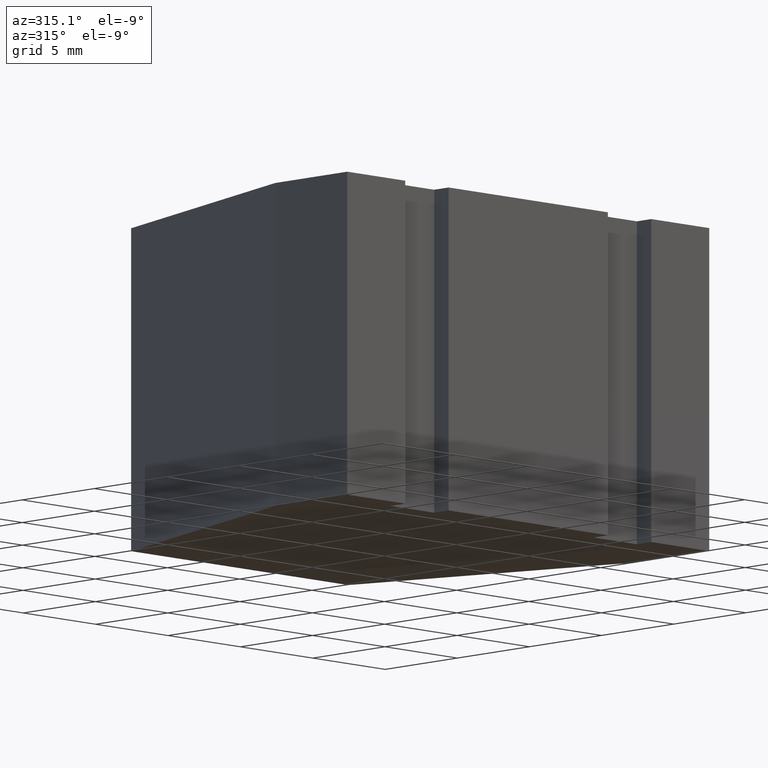
[diagram: clean part render]
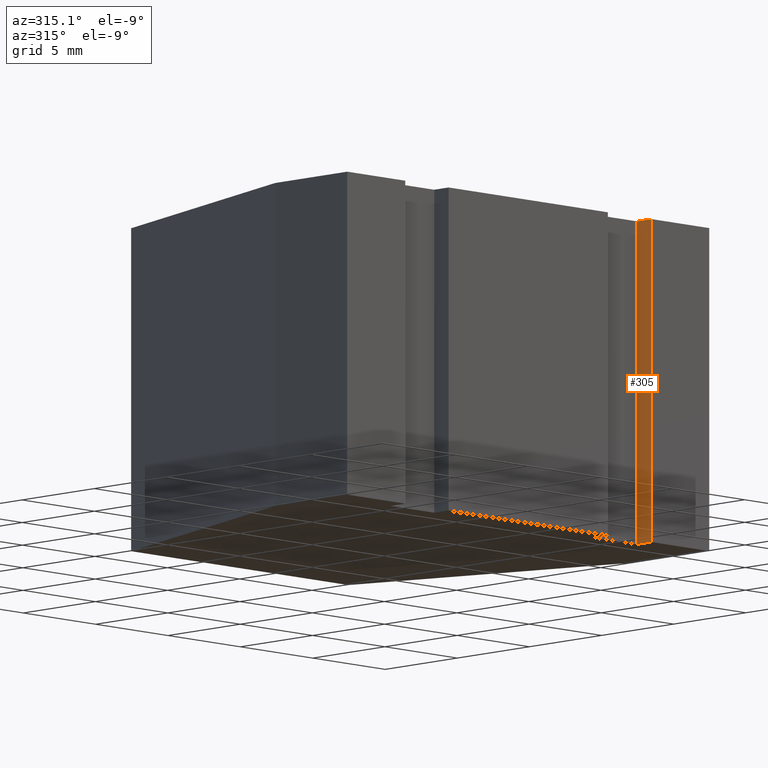
[diagram: same view with one face highlighted and labeled with its STEP entity id]
A machine part, auxiliary view. The second image highlights one B-rep face of the part: STEP entity #305.
In plain terms, the highlighted planar face has unit normal (-1, 0, 0).
Its self-contained STEP definition (entity closure, byte-faithful):
#19=FACE_OUTER_BOUND('',#35,.T.);
#35=EDGE_LOOP('',(#218,#219,#220,#221));
#52=LINE('',#443,#94);
#64=LINE('',#468,#106);
#65=LINE('',#469,#107);
#66=LINE('',#470,#108);
#94=VECTOR('',#365,10.);
#106=VECTOR('',#379,10.);
#107=VECTOR('',#380,10.);
#108=VECTOR('',#381,10.);
#136=VERTEX_POINT('',#440);
#137=VERTEX_POINT('',#442);
#148=VERTEX_POINT('',#466);
#149=VERTEX_POINT('',#467);
#164=EDGE_CURVE('',#137,#136,#52,.T.);
#176=EDGE_CURVE('',#148,#149,#64,.T.);
#177=EDGE_CURVE('',#149,#137,#65,.T.);
#178=EDGE_CURVE('',#148,#136,#66,.T.);
#218=ORIENTED_EDGE('',*,*,#176,.T.);
#219=ORIENTED_EDGE('',*,*,#177,.T.);
#220=ORIENTED_EDGE('',*,*,#164,.T.);
#221=ORIENTED_EDGE('',*,*,#178,.F.);
#289=PLANE('',#344);
#305=ADVANCED_FACE('',(#19),#289,.T.);
#344=AXIS2_PLACEMENT_3D('',#465,#377,#378);
#365=DIRECTION('',(0.,-1.,0.));
#377=DIRECTION('center_axis',(-1.,0.,0.));
#378=DIRECTION('ref_axis',(0.,0.,1.));
#379=DIRECTION('',(0.,1.,0.));
#380=DIRECTION('',(0.,0.,-1.));
#381=DIRECTION('',(0.,0.,-1.));
#440=CARTESIAN_POINT('',(8.5,0.,-8.));
#442=CARTESIAN_POINT('',(8.5,1.,-8.));
#443=CARTESIAN_POINT('',(8.5,0.,-8.));
#465=CARTESIAN_POINT('Origin',(8.5,0.,0.));
#466=CARTESIAN_POINT('',(8.5,0.,8.));
#467=CARTESIAN_POINT('',(8.5,1.,8.));
#468=CARTESIAN_POINT('',(8.5,0.,8.));
#469=CARTESIAN_POINT('',(8.5,1.,0.));
#470=CARTESIAN_POINT('',(8.5,0.,0.));